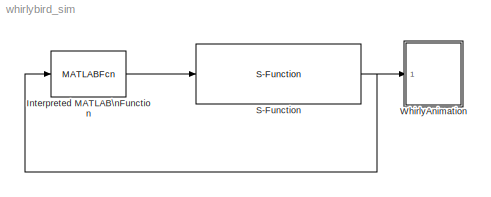
MODEL whirlybird_sim
KIND model
BLOCK [MATLABFcn] Interpreted MATLAB\nFunction
  MATLABFcn = autopilot(u, P)
  OutputDimensions = 2
  Ports = [1, 1]
  SID = 40
BLOCK [S-Function] S-Function
  EnableBusSupport = off
  FunctionName = whirlybird_dynamics
  Parameters = P
  Ports = [1, 1]
  SID = 4
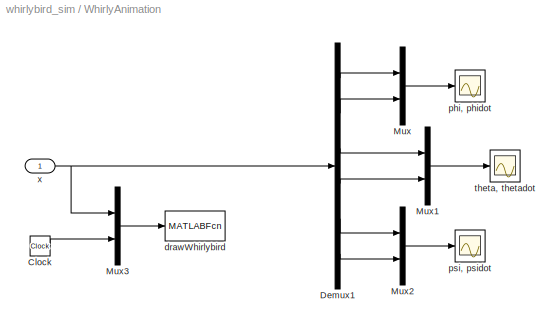
BLOCK [SubSystem] WhirlyAnimation
  Ports = [1]
  RequestExecContextInheritance = off
  SID = 15
BLOCK [Clock] WhirlyAnimation/Clock
  Decimation = 1
  SID = 17
BLOCK [Demux] WhirlyAnimation/Demux1
  DisplayOption = bar
  Outputs = 6
  Ports = [1, 6]
  SID = 33
BLOCK [Mux] WhirlyAnimation/Mux
  DisplayOption = bar
  Inputs = 2
  Ports = [2, 1]
  SID = 21
BLOCK [Mux] WhirlyAnimation/Mux1
  DisplayOption = bar
  Inputs = 2
  Ports = [2, 1]
  SID = 34
BLOCK [Mux] WhirlyAnimation/Mux2
  DisplayOption = bar
  Inputs = 2
  Ports = [2, 1]
  SID = 35
BLOCK [Mux] WhirlyAnimation/Mux3
  DisplayOption = bar
  Inputs = 2
  Ports = [2, 1]
  SID = 37
BLOCK [MATLABFcn] WhirlyAnimation/drawWhirlybird
  MATLABFcn = drawWhirlybird(u, P)
  OutputDimensions = 0
  Ports = [1]
  SID = 22
  SampleTime = 0.1
BLOCK [Scope] WhirlyAnimation/phi, phidot
  DataFormat = StructureWithTime
  Floating = off
  NumInputPorts = 1
  Ports = [1]
  SID = 1
  SampleTime = 0
  SaveName = ScopeData4
  ShowLegends = off
  TimeRange = 40
  YMax = 15
  YMin = -10
  ZoomMode = xonly
BLOCK [Scope] WhirlyAnimation/psi, psidot
  DataFormat = StructureWithTime
  Floating = off
  NumInputPorts = 1
  Ports = [1]
  SID = 24
  SampleTime = 0
  SaveName = ScopeData3
  ShowLegends = off
  TimeRange = 40
  YMax = 1
  YMin = -2
BLOCK [Scope] WhirlyAnimation/theta, thetadot
  DataFormat = StructureWithTime
  Floating = off
  NumInputPorts = 1
  Ports = [1]
  SID = 23
  SampleTime = 0
  SaveName = ScopeData2
  ShowLegends = off
  TimeRange = 40
  YMax = 1
  YMin = -2
BLOCK [Inport] WhirlyAnimation/x
  IconDisplay = Port number
  SID = 36
LINE Interpreted MATLAB\nFunction:1 -> S-Function:1
NET S-Function:1 -> Interpreted MATLAB\nFunction:1, WhirlyAnimation:1
LINE WhirlyAnimation/Clock:1 -> WhirlyAnimation/Mux3:2
LINE WhirlyAnimation/Demux1:1 -> WhirlyAnimation/Mux:1
LINE WhirlyAnimation/Demux1:2 -> WhirlyAnimation/Mux:2
LINE WhirlyAnimation/Demux1:3 -> WhirlyAnimation/Mux1:1
LINE WhirlyAnimation/Demux1:4 -> WhirlyAnimation/Mux1:2
LINE WhirlyAnimation/Demux1:5 -> WhirlyAnimation/Mux2:1
LINE WhirlyAnimation/Demux1:6 -> WhirlyAnimation/Mux2:2
LINE WhirlyAnimation/Mux1:1 -> WhirlyAnimation/theta, thetadot:1
LINE WhirlyAnimation/Mux2:1 -> WhirlyAnimation/psi, psidot:1
LINE WhirlyAnimation/Mux3:1 -> WhirlyAnimation/drawWhirlybird:1
LINE WhirlyAnimation/Mux:1 -> WhirlyAnimation/phi, phidot:1
NET WhirlyAnimation/x:1 -> WhirlyAnimation/Demux1:1, WhirlyAnimation/Mux3:1
note: NET lines group one-source signal fan-out (src -> all destinations, sorted); 1:1 wires keep LINE
